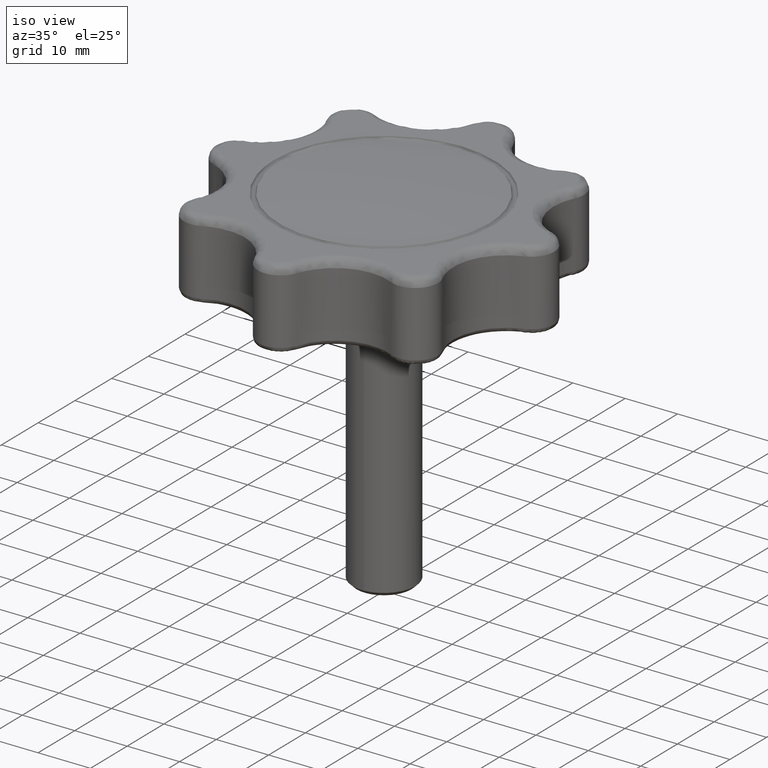
[diagram: clean part render]
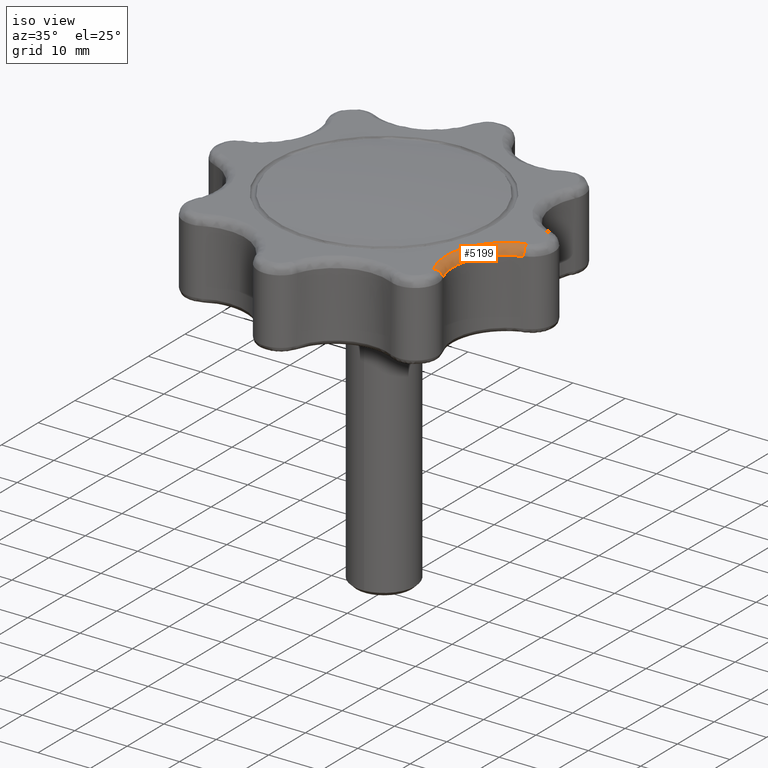
[diagram: same view with one face highlighted and labeled with its STEP entity id]
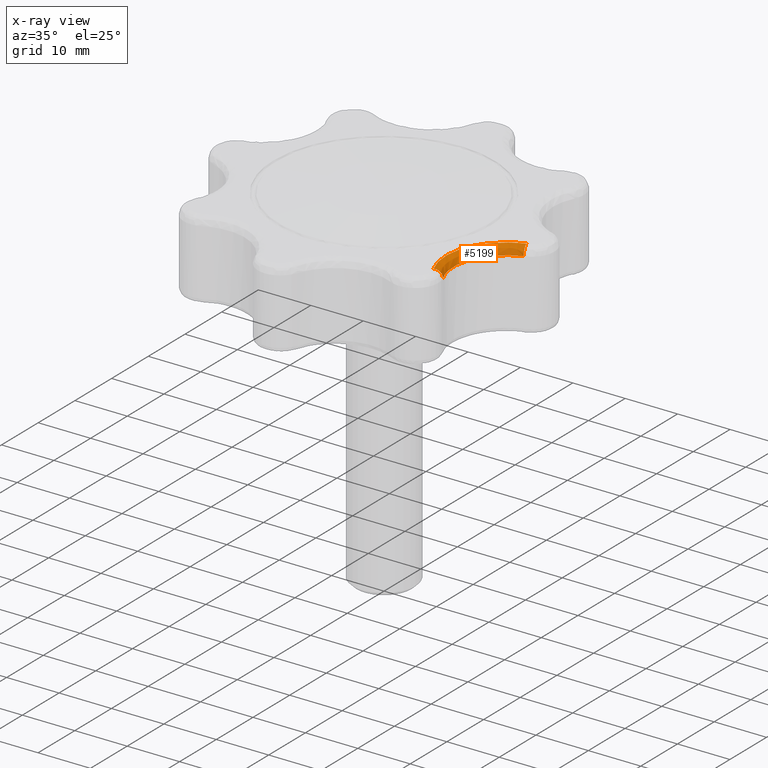
[diagram: x-ray of the same camera — body ghosted, the highlighted face saturated]
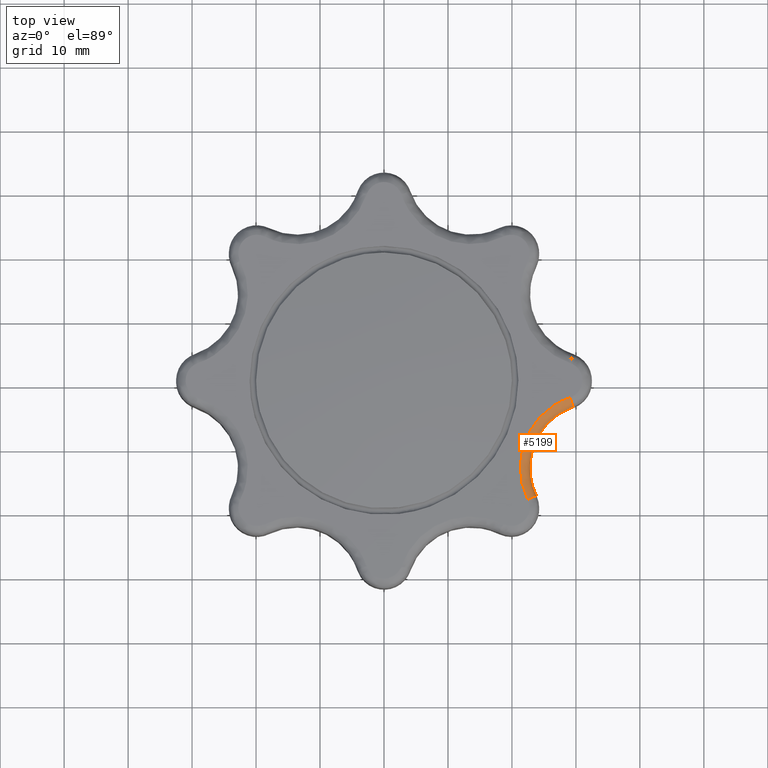
[diagram: same view with one face highlighted and labeled with its STEP entity id]
A machine part, iso view. The second image highlights one B-rep face of the part: STEP entity #5199.
The next image is the same camera in x-ray: the body ghosted, the highlighted face saturated — about 0% of this face is hidden behind the body in this view.
A second angle (top view) of the same face is appended — the face is thin or edge-on in the first view.
In plain terms, the highlighted face is a freeform B-spline surface patch.
Its self-contained STEP definition (entity closure, byte-faithful):
#5011=CARTESIAN_POINT('',(23.814920306593351,-17.979489871093151,15.500000000000000));
#5012=VERTEX_POINT('',#5011);
#5013=CARTESIAN_POINT('',(22.467500108568000,-18.638624624369800,17.0));
#5014=VERTEX_POINT('',#5013);
#5015=CARTESIAN_POINT('',(23.814920306593351,-17.979489871093129,15.500000000000000));
#5016=CARTESIAN_POINT('',(23.814920306593358,-17.979489871093136,16.999999937674584));
#5017=CARTESIAN_POINT('',(22.467500108568000,-18.638624624369800,17.0));
#5025=(BOUNDED_CURVE()B_SPLINE_CURVE(2,(#5015,#5016,#5017),.UNSPECIFIED.,.F.,.U.)CURVE()GEOMETRIC_REPRESENTATION_ITEM()QUASI_UNIFORM_CURVE()RATIONAL_B_SPLINE_CURVE((1.0,0.707106795876788,1.0))REPRESENTATION_ITEM(''));
#5026=EDGE_CURVE('',#5012,#5014,#5025,.T.);
#5130=CARTESIAN_POINT('',(29.848863890929326,-2.361592260985304,16.996349418923458));
#5131=CARTESIAN_POINT('',(15.070143489387867,-6.244490282999957,16.996349418923462));
#5132=CARTESIAN_POINT('',(22.777494287569645,-19.438588108545659,16.996349418923458));
#5133=CARTESIAN_POINT('',(30.286085585803008,-4.025704258104816,17.116609563136031));
#5134=CARTESIAN_POINT('',(17.698578509226355,-7.332892228494796,17.116609563136031));
#5135=CARTESIAN_POINT('',(24.263174771812981,-18.570725764528028,17.116609563136031));
#5136=CARTESIAN_POINT('',(30.255690033684818,-3.910015573092129,15.395974131011378));
#5137=CARTESIAN_POINT('',(17.515850308472590,-7.257226774452342,15.395974131011378));
#5138=CARTESIAN_POINT('',(24.159890604720484,-18.631059355972123,15.395974131011377));
#5146=(BOUNDED_SURFACE()B_SPLINE_SURFACE(2,2,((#5130,#5133,#5136),(#5131,#5134,#5137),(#5132,#5135,#5138)),.UNSPECIFIED.,.F.,.F.,.U.)B_SPLINE_SURFACE_WITH_KNOTS((3,3),(3,3),(0.0,23.034794081833599),(0.0,2.733556233799358),.UNSPECIFIED.)GEOMETRIC_REPRESENTATION_ITEM()RATIONAL_B_SPLINE_SURFACE(((0.839133703610354,0.552191600047922,0.843807531183701),(0.506748272880282,0.333465499501873,0.509570771893661),(0.836610745748280,0.550531368629832,0.841270520888777)))REPRESENTATION_ITEM('')SURFACE());
#5147=CARTESIAN_POINT('',(29.553113565183001,-4.126271015263210,15.500000000000000));
#5148=VERTEX_POINT('',#5147);
#5149=CARTESIAN_POINT('',(29.066420821155901,-2.707418531026545,17.0));
#5150=VERTEX_POINT('',#5149);
#5151=CARTESIAN_POINT('',(29.553113565183001,-4.126271015263209,15.500000000000000));
#5152=CARTESIAN_POINT('',(29.553113565183004,-4.126271015263209,16.121321534570871));
#5153=CARTESIAN_POINT('',(29.410564480777829,-3.710698510811185,16.560661609456169));
#5154=CARTESIAN_POINT('',(29.268015396372665,-3.295126006359163,17.000001684341473));
#5155=CARTESIAN_POINT('',(29.066420821155901,-2.707418531026545,17.0));
#5163=(BOUNDED_CURVE()B_SPLINE_CURVE(2,(#5151,#5152,#5153,#5154,#5155),.UNSPECIFIED.,.F.,.U.)B_SPLINE_CURVE_WITH_KNOTS((3,2,3),(0.0,0.500000000000000,1.0),.UNSPECIFIED.)CURVE()GEOMETRIC_REPRESENTATION_ITEM()RATIONAL_B_SPLINE_CURVE((1.0,0.923879273155954,1.0,0.923879273155954,1.0))REPRESENTATION_ITEM(''));
#5164=EDGE_CURVE('',#5148,#5150,#5163,.T.);
#5165=ORIENTED_EDGE('',*,*,#5164,.T.);
#5166=CARTESIAN_POINT('',(22.467500108568000,-18.638624624369800,17.0));
#5167=CARTESIAN_POINT('',(20.187564922825768,-13.977922680347392,17.000000000000004));
#5168=CARTESIAN_POINT('',(22.173107170609772,-9.184399023947576,17.0));
#5169=CARTESIAN_POINT('',(24.158649418393772,-4.390875367547767,17.000000000000004));
#5170=CARTESIAN_POINT('',(29.066420821155901,-2.707418531026549,17.0));
#5178=(BOUNDED_CURVE()B_SPLINE_CURVE(2,(#5166,#5167,#5168,#5169,#5170),.UNSPECIFIED.,.F.,.U.)B_SPLINE_CURVE_WITH_KNOTS((3,2,3),(0.0,0.500000000000000,1.0),.UNSPECIFIED.)CURVE()GEOMETRIC_REPRESENTATION_ITEM()RATIONAL_B_SPLINE_CURVE((1.0,0.911521454608065,1.0,0.911521454608065,1.0))REPRESENTATION_ITEM(''));
#5179=EDGE_CURVE('',#5014,#5150,#5178,.T.);
#5180=ORIENTED_EDGE('',*,*,#5179,.F.);
#5181=ORIENTED_EDGE('',*,*,#5026,.F.);
#5182=CARTESIAN_POINT('',(29.553113565183001,-4.126271015263210,15.500000000000000));
#5183=CARTESIAN_POINT('',(25.285486010976737,-5.590145771069309,15.500000000000000));
#5184=CARTESIAN_POINT('',(23.558927149102399,-9.758426047306775,15.500000000000000));
#5185=CARTESIAN_POINT('',(21.832368287228046,-13.926706323544243,15.500000000000000));
#5186=CARTESIAN_POINT('',(23.814920306593351,-17.979489871093151,15.500000000000000));
#5194=(BOUNDED_CURVE()B_SPLINE_CURVE(2,(#5182,#5183,#5184,#5185,#5186),.UNSPECIFIED.,.F.,.U.)B_SPLINE_CURVE_WITH_KNOTS((3,2,3),(0.0,0.500000000000000,1.0),.UNSPECIFIED.)CURVE()GEOMETRIC_REPRESENTATION_ITEM()RATIONAL_B_SPLINE_CURVE((1.0,0.911521454971752,1.0,0.911521454971752,1.0))REPRESENTATION_ITEM(''));
#5195=EDGE_CURVE('',#5148,#5012,#5194,.T.);
#5196=ORIENTED_EDGE('',*,*,#5195,.F.);
#5197=EDGE_LOOP('',(#5165,#5180,#5181,#5196));
#5198=FACE_OUTER_BOUND('',#5197,.T.);
#5199=ADVANCED_FACE('',(#5198),#5146,.T.);